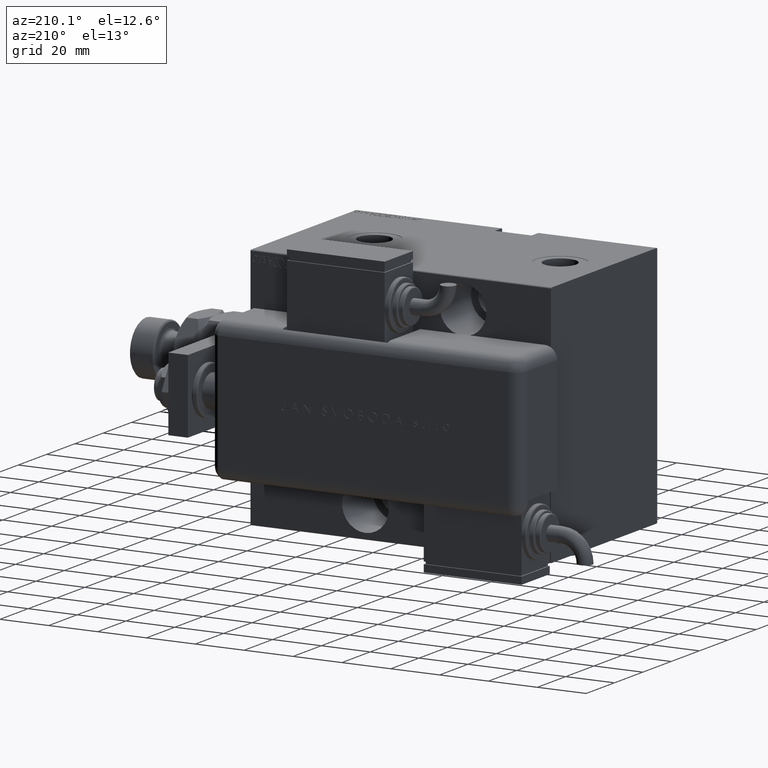
[diagram: clean part render]
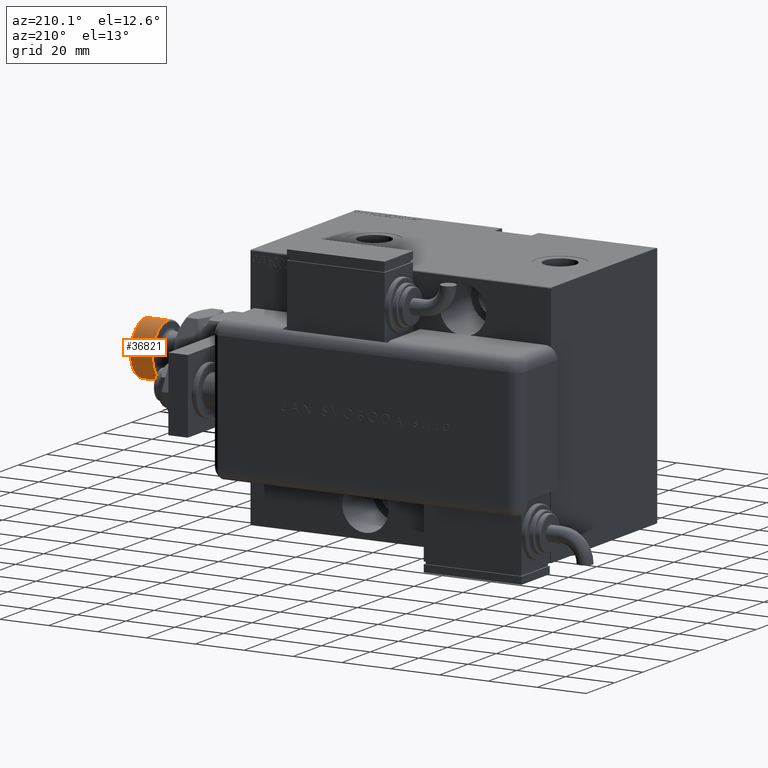
[diagram: same view with one face highlighted and labeled with its STEP entity id]
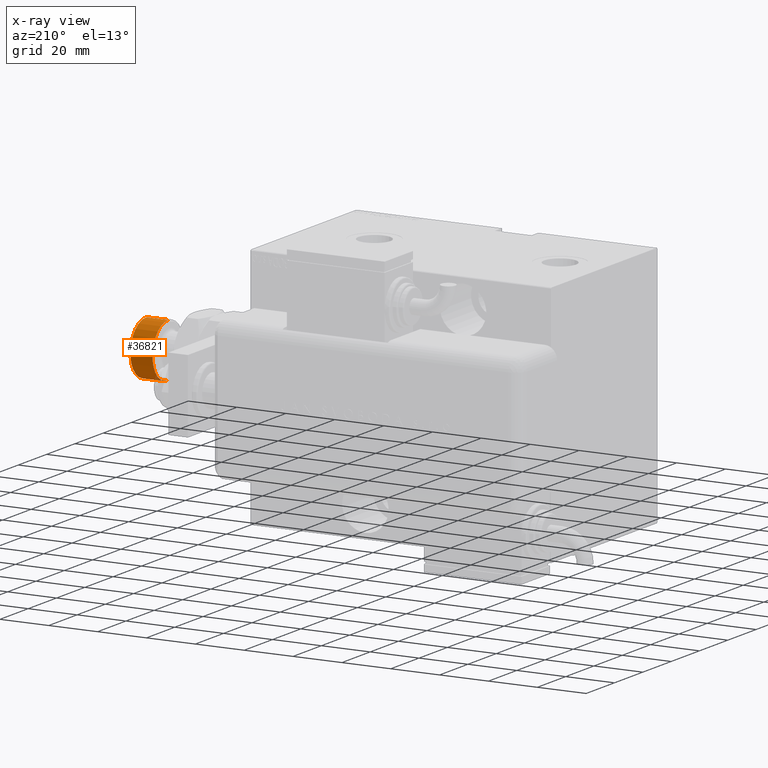
[diagram: x-ray of the same camera — body ghosted, the highlighted face saturated]
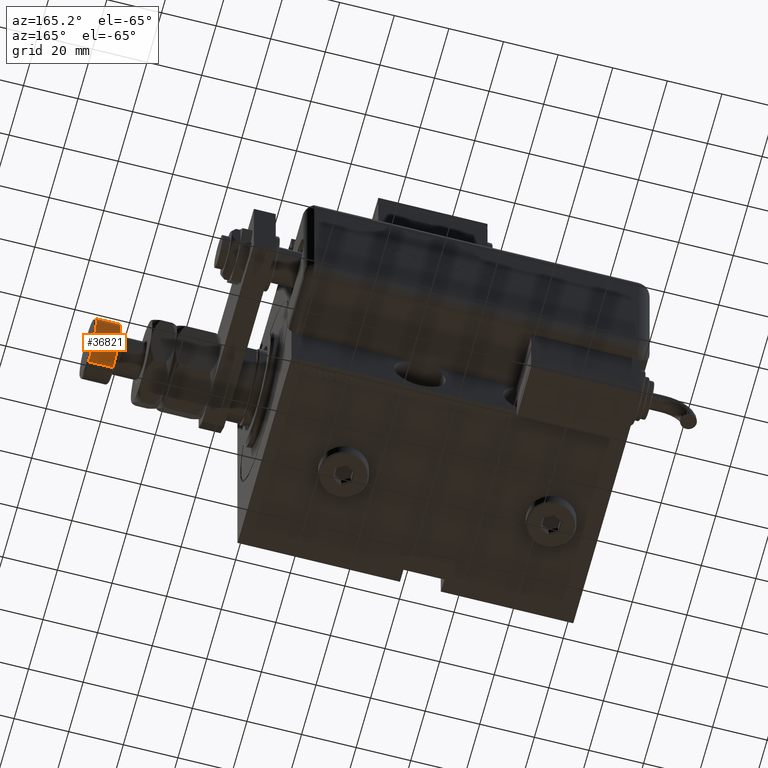
[diagram: same view with one face highlighted and labeled with its STEP entity id]
A machine part, auxiliary view. The second image highlights one B-rep face of the part: STEP entity #36821.
The next image is the same camera in x-ray: the body ghosted, the highlighted face saturated — about 2% of this face is hidden behind the body in this view.
A second angle (auxiliary view) of the same face is appended — the face is thin or edge-on in the first view.
In plain terms, the highlighted cylindrical surface (edge-blend (fillet) strip) has radius 11 mm, axis along (-1, -0, 0).
Its self-contained STEP definition (entity closure, byte-faithful):
#1161 = DIRECTION ( 'NONE',  ( -0.000000000000000000, -0.000000000000000000, -1.000000000000000000 ) ) ;
#1364 = CARTESIAN_POINT ( 'NONE',  ( 11.00000000000000000, 1.347111479062088405E-15, 45.00000000000000711 ) ) ;
#1879 = CARTESIAN_POINT ( 'NONE',  ( 11.00000000000000000, 1.347111479062088405E-15, 44.50000000000001421 ) ) ;
#2039 = CARTESIAN_POINT ( 'NONE',  ( -11.00000000000000000, 0.000000000000000000, 35.50000000000001421 ) ) ;
#4200 = DIRECTION ( 'NONE',  ( -1.000000000000000000, 0.000000000000000000, 0.000000000000000000 ) ) ;
#5006 = EDGE_CURVE ( 'NONE', #15936, #29211, #47957, .T. ) ;
#5435 = EDGE_CURVE ( 'NONE', #37342, #15936, #48579, .T. ) ;
#8038 = VECTOR ( 'NONE', #34796, 1000.000000000000000 ) ;
#9745 = EDGE_LOOP ( 'NONE', ( #52955, #36308, #29262, #27911 ) ) ;
#13240 = CARTESIAN_POINT ( 'NONE',  ( 0.000000000000000000, 0.000000000000000000, 45.00000000000000711 ) ) ;
#15936 = VERTEX_POINT ( 'NONE', #39418 ) ;
#19186 = DIRECTION ( 'NONE',  ( 0.000000000000000000, 0.000000000000000000, -1.000000000000000000 ) ) ;
#22004 = CARTESIAN_POINT ( 'NONE',  ( -11.00000000000000000, 0.000000000000000000, 44.50000000000001421 ) ) ;
#27091 = AXIS2_PLACEMENT_3D ( 'NONE', #13240, #41074, #4200 ) ;
#27911 = ORIENTED_EDGE ( 'NONE', *, *, #54843, .F. ) ;
#29211 = VERTEX_POINT ( 'NONE', #2039 ) ;
#29262 = ORIENTED_EDGE ( 'NONE', *, *, #5006, .T. ) ;
#32794 = CARTESIAN_POINT ( 'NONE',  ( 0.000000000000000000, 0.000000000000000000, 35.50000000000001421 ) ) ;
#32944 = DIRECTION ( 'NONE',  ( 1.000000000000000000, 0.000000000000000000, 0.000000000000000000 ) ) ;
#34796 = DIRECTION ( 'NONE',  ( -0.000000000000000000, -0.000000000000000000, -1.000000000000000000 ) ) ;
#35465 = AXIS2_PLACEMENT_3D ( 'NONE', #41699, #19186, #32944 ) ;
#36308 = ORIENTED_EDGE ( 'NONE', *, *, #5435, .T. ) ;
#36821 = ADVANCED_FACE ( 'NONE', ( #45766 ), #41385, .T. ) ;
#37342 = VERTEX_POINT ( 'NONE', #1879 ) ;
#39418 = CARTESIAN_POINT ( 'NONE',  ( 11.00000000000000000, 1.347111479062088405E-15, 35.50000000000001421 ) ) ;
#39534 = VECTOR ( 'NONE', #1161, 1000.000000000000000 ) ;
#41074 = DIRECTION ( 'NONE',  ( -0.000000000000000000, -0.000000000000000000, -1.000000000000000000 ) ) ;
#41385 = CYLINDRICAL_SURFACE ( 'NONE', #27091, 11.00000000000000000 ) ;
#41699 = CARTESIAN_POINT ( 'NONE',  ( 0.000000000000000000, 0.000000000000000000, 44.50000000000001421 ) ) ;
#42175 = DIRECTION ( 'NONE',  ( 1.000000000000000000, 0.000000000000000000, 0.000000000000000000 ) ) ;
#43974 = CARTESIAN_POINT ( 'NONE',  ( -11.00000000000000000, 0.000000000000000000, 45.00000000000000711 ) ) ;
#45766 = FACE_OUTER_BOUND ( 'NONE', #9745, .T. ) ;
#46557 = DIRECTION ( 'NONE',  ( -0.000000000000000000, -0.000000000000000000, 1.000000000000000000 ) ) ;
#46596 = EDGE_CURVE ( 'NONE', #47321, #37342, #47507, .T. ) ;
#47321 = VERTEX_POINT ( 'NONE', #22004 ) ;
#47507 = CIRCLE ( 'NONE', #35465, 11.00000000000000000 ) ;
#47957 = CIRCLE ( 'NONE', #55933, 11.00000000000000000 ) ;
#48579 = LINE ( 'NONE', #1364, #8038 ) ;
#52955 = ORIENTED_EDGE ( 'NONE', *, *, #46596, .T. ) ;
#54843 = EDGE_CURVE ( 'NONE', #47321, #29211, #58064, .T. ) ;
#55933 = AXIS2_PLACEMENT_3D ( 'NONE', #32794, #46557, #42175 ) ;
#58064 = LINE ( 'NONE', #43974, #39534 ) ;